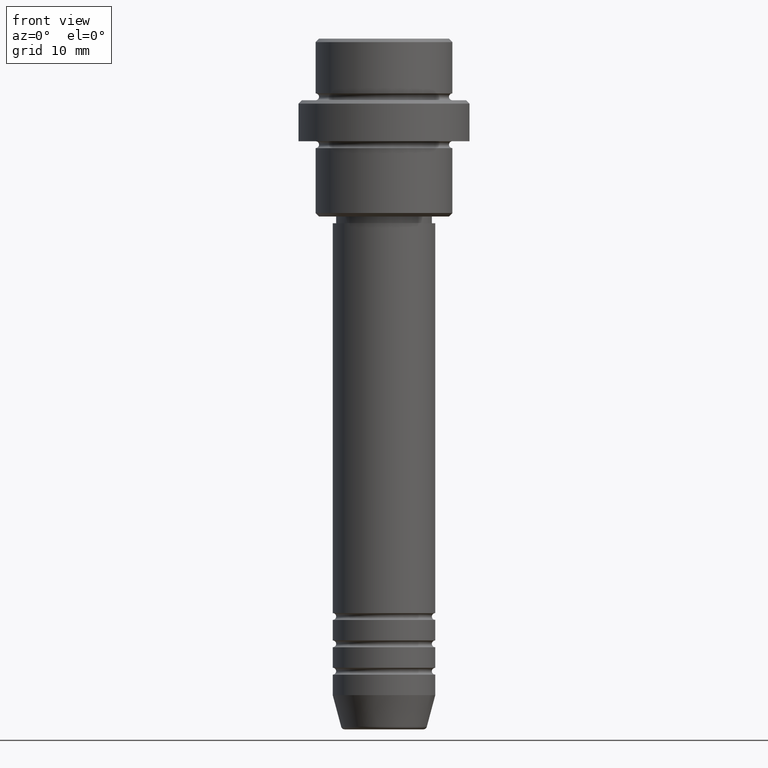
[diagram: clean part render]
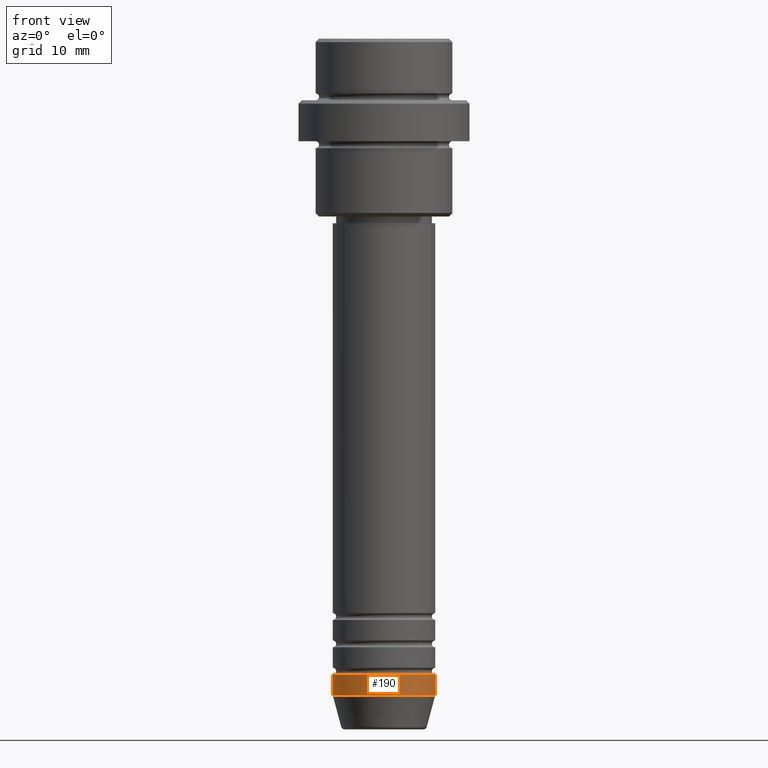
[diagram: same view with one face highlighted and labeled with its STEP entity id]
A machine part, front view. The second image highlights one B-rep face of the part: STEP entity #190.
In plain terms, the highlighted cylindrical surface (partial cylindrical patch) has radius 7.5 mm, axis along (-0, -0, 1).
Its self-contained STEP definition (entity closure, byte-faithful):
#14 = ORIENTED_EDGE ( 'NONE', *, *, #128, .F. ) ;
#79 = EDGE_CURVE ( 'NONE', #650, #1013, #1372, .T. ) ;
#86 = DIRECTION ( 'NONE',  ( -0.000000000000000000, -0.000000000000000000, 1.000000000000000000 ) ) ;
#119 = DIRECTION ( 'NONE',  ( 1.000000000000000000, 0.000000000000000000, 0.000000000000000000 ) ) ;
#128 = EDGE_CURVE ( 'NONE', #1095, #1013, #1023, .T. ) ;
#138 = EDGE_CURVE ( 'NONE', #197, #1095, #1121, .T. ) ;
#158 = CARTESIAN_POINT ( 'NONE',  ( 7.500000000000000000, 0.000000000000000000, 0.000000000000000000 ) ) ;
#162 = VECTOR ( 'NONE', #1246, 1000.000000000000000 ) ;
#166 = DIRECTION ( 'NONE',  ( -0.000000000000000000, -0.000000000000000000, 1.000000000000000000 ) ) ;
#190 = ADVANCED_FACE ( 'NONE', ( #1269 ), #1165, .T. ) ;
#197 = VERTEX_POINT ( 'NONE', #839 ) ;
#275 = CIRCLE ( 'NONE', #679, 7.500000000000000000 ) ;
#293 = CARTESIAN_POINT ( 'NONE',  ( 0.000000000000000000, 0.000000000000000000, 0.000000000000000000 ) ) ;
#388 = ORIENTED_EDGE ( 'NONE', *, *, #444, .T. ) ;
#399 = DIRECTION ( 'NONE',  ( 1.000000000000000000, 0.000000000000000000, 0.000000000000000000 ) ) ;
#444 = EDGE_CURVE ( 'NONE', #197, #650, #275, .T. ) ;
#487 = ORIENTED_EDGE ( 'NONE', *, *, #138, .F. ) ;
#510 = CARTESIAN_POINT ( 'NONE',  ( -7.500000000000000000, 9.184850993605147944E-16, -93.00000000000000000 ) ) ;
#650 = VERTEX_POINT ( 'NONE', #937 ) ;
#652 = CARTESIAN_POINT ( 'NONE',  ( 0.000000000000000000, 0.000000000000000000, -96.00000000000000000 ) ) ;
#679 = AXIS2_PLACEMENT_3D ( 'NONE', #652, #1198, #119 ) ;
#712 = DIRECTION ( 'NONE',  ( -0.000000000000000000, -0.000000000000000000, 1.000000000000000000 ) ) ;
#774 = AXIS2_PLACEMENT_3D ( 'NONE', #907, #712, #1145 ) ;
#776 = EDGE_LOOP ( 'NONE', ( #487, #388, #1079, #14 ) ) ;
#839 = CARTESIAN_POINT ( 'NONE',  ( -7.500000000000000000, 9.184850993605147944E-16, -96.00000000000000000 ) ) ;
#907 = CARTESIAN_POINT ( 'NONE',  ( 0.000000000000000000, 0.000000000000000000, -93.00000000000000000 ) ) ;
#937 = CARTESIAN_POINT ( 'NONE',  ( 7.500000000000000000, 0.000000000000000000, -96.00000000000000000 ) ) ;
#1013 = VERTEX_POINT ( 'NONE', #1028 ) ;
#1023 = CIRCLE ( 'NONE', #774, 7.500000000000000000 ) ;
#1028 = CARTESIAN_POINT ( 'NONE',  ( 7.500000000000000000, 0.000000000000000000, -93.00000000000000000 ) ) ;
#1079 = ORIENTED_EDGE ( 'NONE', *, *, #79, .T. ) ;
#1086 = AXIS2_PLACEMENT_3D ( 'NONE', #293, #86, #399 ) ;
#1095 = VERTEX_POINT ( 'NONE', #510 ) ;
#1121 = LINE ( 'NONE', #1241, #162 ) ;
#1145 = DIRECTION ( 'NONE',  ( 1.000000000000000000, 0.000000000000000000, 0.000000000000000000 ) ) ;
#1165 = CYLINDRICAL_SURFACE ( 'NONE', #1086, 7.500000000000000000 ) ;
#1198 = DIRECTION ( 'NONE',  ( -0.000000000000000000, -0.000000000000000000, 1.000000000000000000 ) ) ;
#1241 = CARTESIAN_POINT ( 'NONE',  ( -7.500000000000000000, 9.184850993605147944E-16, 0.000000000000000000 ) ) ;
#1246 = DIRECTION ( 'NONE',  ( -0.000000000000000000, -0.000000000000000000, 1.000000000000000000 ) ) ;
#1269 = FACE_OUTER_BOUND ( 'NONE', #776, .T. ) ;
#1371 = VECTOR ( 'NONE', #166, 1000.000000000000000 ) ;
#1372 = LINE ( 'NONE', #158, #1371 ) ;